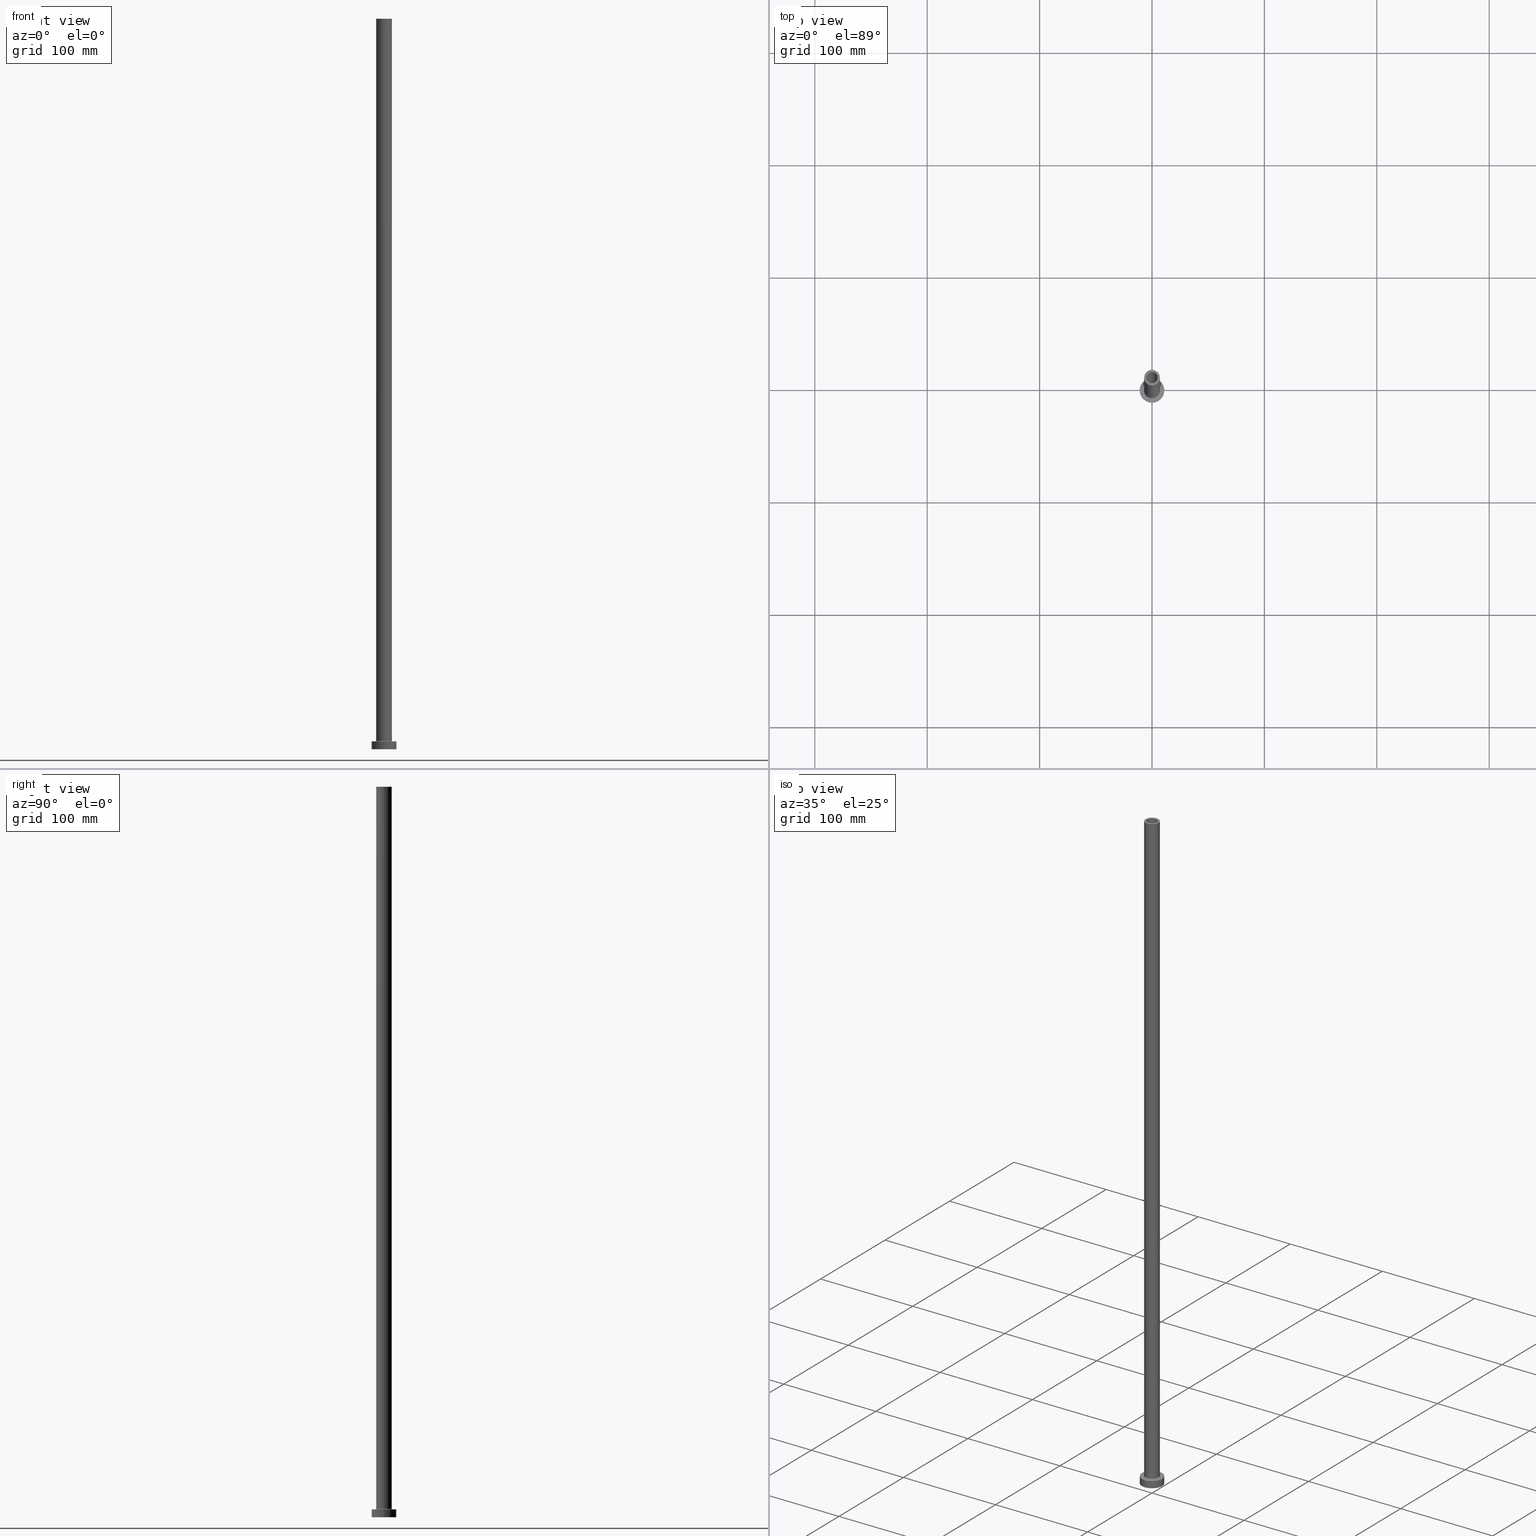
[diagram: canonical four-view strip — front | top / right | iso, engineering-drawing reading convention]
A machine part, canonical four-view strip (front | top / right | iso — engineering-drawing reading convention). The complete STEP part file that produces these views, byte-faithful:
ISO-10303-21;
HEADER;
FILE_DESCRIPTION (( 'STEP AP203' ),
    '1' );
FILE_NAME ('9826.STEP',
    '2023-02-13T10:05:26',
    ( '' ),
    ( '' ),
    'SwSTEP 2.0',
    'SolidWorks 2019',
    '' );
FILE_SCHEMA (( 'CONFIG_CONTROL_DESIGN' ));
ENDSEC;

DATA;
#1 = AXIS2_PLACEMENT_3D ( 'NONE', #113, #359, #367 ) ;
#2 = CARTESIAN_POINT ( 'NONE',  ( 5.150000000000001243, 6.306931015608869596E-16, 619.5663996924428147 ) ) ;
#3 = DIRECTION ( 'NONE',  ( 1.000000000000000000, 0.000000000000000000, 0.000000000000000000 ) ) ;
#4 = CARTESIAN_POINT ( 'NONE',  ( 7.000000000000000888, 8.572527594031474176E-16, 650.0000000000000000 ) ) ;
#5 = LINE ( 'NONE', #73, #55 ) ;
#6 = VERTEX_POINT ( 'NONE', #137 ) ;
#7 = LINE ( 'NONE', #75, #434 ) ;
#8 = AXIS2_PLACEMENT_3D ( 'NONE', #138, #218, #94 ) ;
#9 = ORIENTED_EDGE ( 'NONE', *, *, #151, .T. ) ;
#10 = FACE_OUTER_BOUND ( 'NONE', #398, .T. ) ;
#11 = ORIENTED_EDGE ( 'NONE', *, *, #411, .T. ) ;
#12 = ADVANCED_FACE ( 'NONE', ( #406 ), #286, .T. ) ;
#13 = ORIENTED_EDGE ( 'NONE', *, *, #208, .T. ) ;
#14 = VERTEX_POINT ( 'NONE', #98 ) ;
#15 = CARTESIAN_POINT ( 'NONE',  ( 0.000000000000000000, 0.000000000000000000, 0.000000000000000000 ) ) ;
#16 = EDGE_CURVE ( 'NONE', #204, #57, #182, .T. ) ;
#17 = DIRECTION ( 'NONE',  ( 0.000000000000000000, 0.000000000000000000, 1.000000000000000000 ) ) ;
#18 = ORIENTED_EDGE ( 'NONE', *, *, #29, .T. ) ;
#19 = CARTESIAN_POINT ( 'NONE',  ( 5.000000000000000000, 6.123233995736766282E-16, 650.0000000000000000 ) ) ;
#20 = DATE_AND_TIME ( #213, #196 ) ;
#21 = ORIENTED_EDGE ( 'NONE', *, *, #45, .T. ) ;
#22 = CIRCLE ( 'NONE', #143, 7.700000000000001066 ) ;
#23 = COORDINATED_UNIVERSAL_TIME_OFFSET ( 1, 0, .AHEAD. ) ;
#24 = ORIENTED_EDGE ( 'NONE', *, *, #396, .T. ) ;
#25 = DIRECTION ( 'NONE',  ( -1.000000000000000000, 0.000000000000000000, 0.000000000000000000 ) ) ;
#26 = DATE_AND_TIME ( #386, #251 ) ;
#27 = DIRECTION ( 'NONE',  ( -0.000000000000000000, -0.000000000000000000, -1.000000000000000000 ) ) ;
#28 = CARTESIAN_POINT ( 'NONE',  ( 0.000000000000000000, 0.000000000000000000, 7.000000000000000000 ) ) ;
#29 = EDGE_CURVE ( 'NONE', #85, #6, #100, .T. ) ;
#30 = FACE_OUTER_BOUND ( 'NONE', #114, .T. ) ;
#31 = DIRECTION ( 'NONE',  ( -0.000000000000000000, -0.000000000000000000, -1.000000000000000000 ) ) ;
#32 = CARTESIAN_POINT ( 'NONE',  ( -7.000000000000000888, 0.000000000000000000, 650.0000000000000000 ) ) ;
#33 = DIRECTION ( 'NONE',  ( 0.000000000000000000, 0.000000000000000000, 1.000000000000000000 ) ) ;
#34 = CIRCLE ( 'NONE', #205, 0.7000000000000000666 ) ;
#35 = CC_DESIGN_SECURITY_CLASSIFICATION ( #369, ( #44 ) ) ;
#36 = PRODUCT_DEFINITION ( 'NEZN�M�', '', #44, #364 ) ;
#37 = ORIENTED_EDGE ( 'NONE', *, *, #226, .F. ) ;
#38 = DIRECTION ( 'NONE',  ( 0.000000000000000000, 0.000000000000000000, 1.000000000000000000 ) ) ;
#39 = EDGE_CURVE ( 'NONE', #14, #302, #437, .T. ) ;
#40 = MANIFOLD_SOLID_BREP ( 'Odebrat vysunut�m4', #199 ) ;
#41 = EDGE_LOOP ( 'NONE', ( #420, #373, #438, #122 ) ) ;
#42 = PRODUCT ( '9826', '9826', '', ( #289 ) ) ;
#43 = DIRECTION ( 'NONE',  ( -1.000000000000000000, 0.000000000000000000, 0.000000000000000000 ) ) ;
#44 = PRODUCT_DEFINITION_FORMATION_WITH_SPECIFIED_SOURCE ( 'LIBOVOLN�', '', #42, .NOT_KNOWN. ) ;
#45 = EDGE_CURVE ( 'NONE', #269, #176, #316, .T. ) ;
#46 = ORIENTED_EDGE ( 'NONE', *, *, #235, .T. ) ;
#47 = DIRECTION ( 'NONE',  ( -1.000000000000000000, 0.000000000000000000, 0.000000000000000000 ) ) ;
#48 = CARTESIAN_POINT ( 'NONE',  ( 5.150000000000001243, 6.306931015608869596E-16, 605.0000000000000000 ) ) ;
#49 = VERTEX_POINT ( 'NONE', #380 ) ;
#50 = DIRECTION ( 'NONE',  ( -0.000000000000000000, -0.000000000000000000, -1.000000000000000000 ) ) ;
#51 = ORIENTED_EDGE ( 'NONE', *, *, #66, .F. ) ;
#52 = ADVANCED_FACE ( 'NONE', ( #451, #281 ), #93, .T. ) ;
#53 = CYLINDRICAL_SURFACE ( 'NONE', #356, 5.000000000000000000 ) ;
#54 = EDGE_CURVE ( 'NONE', #302, #14, #146, .T. ) ;
#55 = VECTOR ( 'NONE', #116, 1000.000000000000000 ) ;
#56 = CARTESIAN_POINT ( 'NONE',  ( 0.000000000000000000, 0.000000000000000000, 650.0000000000000000 ) ) ;
#57 = VERTEX_POINT ( 'NONE', #144 ) ;
#58 = PERSON_AND_ORGANIZATION ( #319, #132 ) ;
#59 = ORIENTED_EDGE ( 'NONE', *, *, #95, .T. ) ;
#60 = CARTESIAN_POINT ( 'NONE',  ( 7.700000000000001066, 0.000000000000000000, 7.000000000000020428 ) ) ;
#61 = CARTESIAN_POINT ( 'NONE',  ( 0.000000000000000000, 0.000000000000000000, 7.700000000000040146 ) ) ;
#62 = CC_DESIGN_APPROVAL ( #106, ( #36 ) ) ;
#63 = CALENDAR_DATE ( 2023, 13, 2 ) ;
#64 = EDGE_LOOP ( 'NONE', ( #214, #9, #387, #277 ) ) ;
#65 = PERSON_AND_ORGANIZATION_ROLE ( 'classification_officer' ) ;
#66 = EDGE_CURVE ( 'NONE', #269, #57, #67, .T. ) ;
#67 = LINE ( 'NONE', #427, #371 ) ;
#68 = VECTOR ( 'NONE', #365, 1000.000000000000000 ) ;
#69 = DIRECTION ( 'NONE',  ( -1.000000000000000000, 0.000000000000000000, 0.000000000000000000 ) ) ;
#70 = PLANE ( 'NONE',  #1 ) ;
#71 = CARTESIAN_POINT ( 'NONE',  ( 0.000000000000000000, 0.000000000000000000, 0.000000000000000000 ) ) ;
#72 = ADVANCED_BREP_SHAPE_REPRESENTATION ( '9826', ( #40, #124 ), #163 ) ;
#73 = CARTESIAN_POINT ( 'NONE',  ( 7.000000000000000888, 8.572527594031474176E-16, 650.0000000000000000 ) ) ;
#74 = VECTOR ( 'NONE', #276, 1000.000000000000000 ) ;
#75 = CARTESIAN_POINT ( 'NONE',  ( -5.000000000000000000, 0.000000000000000000, 650.0000000000000000 ) ) ;
#76 = EDGE_LOOP ( 'NONE', ( #402, #59 ) ) ;
#77 = CC_DESIGN_DATE_AND_TIME_ASSIGNMENT ( #26, #419, ( #369 ) ) ;
#78 = LINE ( 'NONE', #327, #68 ) ;
#79 = ORIENTED_EDGE ( 'NONE', *, *, #448, .F. ) ;
#80 = EDGE_CURVE ( 'NONE', #262, #174, #272, .T. ) ;
#81 = DIRECTION ( 'NONE',  ( 0.000000000000000000, -1.000000000000000000, 0.000000000000000000 ) ) ;
#82 = VERTEX_POINT ( 'NONE', #325 ) ;
#83 = CARTESIAN_POINT ( 'NONE',  ( 5.000000000000000000, 6.123233995736766282E-16, 650.0000000000000000 ) ) ;
#84 = PERSON_AND_ORGANIZATION_ROLE ( 'creator' ) ;
#85 = VERTEX_POINT ( 'NONE', #353 ) ;
#86 = CARTESIAN_POINT ( 'NONE',  ( -5.150000000000001243, 0.000000000000000000, 605.0000000000000000 ) ) ;
#87 = ORIENTED_EDGE ( 'NONE', *, *, #307, .T. ) ;
#88 = FACE_OUTER_BOUND ( 'NONE', #370, .T. ) ;
#89 = VECTOR ( 'NONE', #253, 1000.000000000000000 ) ;
#90 = EDGE_LOOP ( 'NONE', ( #436, #408, #13, #375 ) ) ;
#91 = APPLICATION_PROTOCOL_DEFINITION ( 'international standard', 'config_control_design', 1994, #355 ) ;
#92 = APPROVAL_DATE_TIME ( #20, #106 ) ;
#93 = PLANE ( 'NONE',  #240 ) ;
#94 = DIRECTION ( 'NONE',  ( 1.000000000000000000, 0.000000000000000000, 0.000000000000000000 ) ) ;
#95 = EDGE_CURVE ( 'NONE', #341, #366, #135, .T. ) ;
#96 = APPROVAL_STATUS ( 'not_yet_approved' ) ;
#97 = ORIENTED_EDGE ( 'NONE', *, *, #461, .F. ) ;
#98 = CARTESIAN_POINT ( 'NONE',  ( 11.00000000000000000, 1.347111479062088405E-15, 0.000000000000000000 ) ) ;
#99 = DIRECTION ( 'NONE',  ( -0.000000000000000000, -0.000000000000000000, -1.000000000000000000 ) ) ;
#100 = CIRCLE ( 'NONE', #165, 11.00000000000000000 ) ;
#101 = DATE_TIME_ROLE ( 'creation_date' ) ;
#102 = EDGE_CURVE ( 'NONE', #49, #164, #219, .T. ) ;
#103 = CARTESIAN_POINT ( 'NONE',  ( 0.000000000000000000, 0.000000000000000000, 650.0000000000000000 ) ) ;
#104 = CC_DESIGN_APPROVAL ( #275, ( #44 ) ) ;
#105 = AXIS2_PLACEMENT_3D ( 'NONE', #133, #17, #168 ) ;
#106 = APPROVAL ( #413, 'NEUR�EN�' ) ;
#107 = CARTESIAN_POINT ( 'NONE',  ( 5.150000000000001243, 6.306931015608869596E-16, 0.000000000000000000 ) ) ;
#108 = DIRECTION ( 'NONE',  ( 0.000000000000000000, 0.000000000000000000, -1.000000000000000000 ) ) ;
#109 = CYLINDRICAL_SURFACE ( 'NONE', #342, 5.150000000000001243 ) ;
#110 = CYLINDRICAL_SURFACE ( 'NONE', #421, 5.000000000000000000 ) ;
#111 = EDGE_LOOP ( 'NONE', ( #304, #306 ) ) ;
#112 = AXIS2_PLACEMENT_3D ( 'NONE', #188, #326, #3 ) ;
#113 = CARTESIAN_POINT ( 'NONE',  ( 0.000000000000000000, 0.000000000000000000, 605.0000000000000000 ) ) ;
#114 = EDGE_LOOP ( 'NONE', ( #405, #440, #252, #51 ) ) ;
#115 = ADVANCED_FACE ( 'NONE', ( #458 ), #183, .F. ) ;
#116 = DIRECTION ( 'NONE',  ( -0.000000000000000000, -0.000000000000000000, -1.000000000000000000 ) ) ;
#117 = CARTESIAN_POINT ( 'NONE',  ( 11.00000000000000000, 1.347111479062088405E-15, 7.000000000000000000 ) ) ;
#118 = ORIENTED_EDGE ( 'NONE', *, *, #141, .T. ) ;
#119 = CARTESIAN_POINT ( 'NONE',  ( 0.000000000000000000, 0.000000000000000000, 7.000000000000000000 ) ) ;
#120 = CARTESIAN_POINT ( 'NONE',  ( 7.700000000000001066, 0.000000000000000000, 7.700000000000040146 ) ) ;
#121 = APPROVAL_DATE_TIME ( #175, #275 ) ;
#122 = ORIENTED_EDGE ( 'NONE', *, *, #431, .F. ) ;
#123 = CARTESIAN_POINT ( 'NONE',  ( 0.000000000000000000, 0.000000000000000000, 0.000000000000000000 ) ) ;
#124 = AXIS2_PLACEMENT_3D ( 'NONE', #15, #166, #416 ) ;
#125 = CARTESIAN_POINT ( 'NONE',  ( 0.000000000000000000, 0.000000000000000000, 650.0000000000000000 ) ) ;
#126 = EDGE_LOOP ( 'NONE', ( #265, #297 ) ) ;
#127 = ORIENTED_EDGE ( 'NONE', *, *, #329, .T. ) ;
#128 = CARTESIAN_POINT ( 'NONE',  ( -11.00000000000000000, 0.000000000000000000, 7.000000000000000000 ) ) ;
#129 = ORIENTED_EDGE ( 'NONE', *, *, #208, .F. ) ;
#130 = DIRECTION ( 'NONE',  ( 1.000000000000000000, 0.000000000000000000, 0.000000000000000000 ) ) ;
#131 = CARTESIAN_POINT ( 'NONE',  ( 0.000000000000000000, 0.000000000000000000, 650.0000000000000000 ) ) ;
#132 = ORGANIZATION ( 'NEUR�EN�', 'NEUR�EN�', '' ) ;
#133 = CARTESIAN_POINT ( 'NONE',  ( 0.000000000000000000, 0.000000000000000000, 650.0000000000000000 ) ) ;
#134 = ADVANCED_FACE ( 'NONE', ( #30 ), #423, .T. ) ;
#135 = CIRCLE ( 'NONE', #403, 7.700000000000001066 ) ;
#136 = FACE_OUTER_BOUND ( 'NONE', #41, .T. ) ;
#137 = CARTESIAN_POINT ( 'NONE',  ( -11.00000000000000000, 0.000000000000000000, 7.000000000000000000 ) ) ;
#138 = CARTESIAN_POINT ( 'NONE',  ( 0.000000000000000000, 0.000000000000000000, 605.0000000000000000 ) ) ;
#139 = DIRECTION ( 'NONE',  ( 1.000000000000000000, 0.000000000000000000, 0.000000000000000000 ) ) ;
#140 = CARTESIAN_POINT ( 'NONE',  ( 0.000000000000000000, 0.000000000000000000, 7.000000000000000000 ) ) ;
#141 = EDGE_CURVE ( 'NONE', #174, #262, #442, .T. ) ;
#142 = AXIS2_PLACEMENT_3D ( 'NONE', #200, #271, #404 ) ;
#143 = AXIS2_PLACEMENT_3D ( 'NONE', #150, #363, #333 ) ;
#144 = CARTESIAN_POINT ( 'NONE',  ( -7.000000000000000888, 0.000000000000000000, 7.700000000000040146 ) ) ;
#145 = CARTESIAN_POINT ( 'NONE',  ( 0.000000000000000000, 0.000000000000000000, 605.0000000000000000 ) ) ;
#146 = CIRCLE ( 'NONE', #300, 11.00000000000000000 ) ;
#147 = DIRECTION ( 'NONE',  ( 1.000000000000000000, 0.000000000000000000, 0.000000000000000000 ) ) ;
#148 = CARTESIAN_POINT ( 'NONE',  ( 0.000000000000000000, 0.000000000000000000, 7.000000000000000000 ) ) ;
#149 = ORIENTED_EDGE ( 'NONE', *, *, #45, .F. ) ;
#150 = CARTESIAN_POINT ( 'NONE',  ( 0.000000000000000000, 0.000000000000000000, 7.000000000000000000 ) ) ;
#151 = EDGE_CURVE ( 'NONE', #174, #318, #422, .T. ) ;
#152 = AXIS2_PLACEMENT_3D ( 'NONE', #397, #160, #330 ) ;
#153 = CIRCLE ( 'NONE', #223, 5.000000000000000000 ) ;
#154 = DIRECTION ( 'NONE',  ( 1.224646799147353207E-16, 1.000000000000000000, -0.000000000000000000 ) ) ;
#155 = AXIS2_PLACEMENT_3D ( 'NONE', #239, #449, #139 ) ;
#156 = CARTESIAN_POINT ( 'NONE',  ( -7.700000000000001066, 9.429780353434621002E-16, 7.000000000000020428 ) ) ;
#157 = UNCERTAINTY_MEASURE_WITH_UNIT (LENGTH_MEASURE( 1.000000000000000082E-05 ), #215, 'distance_accuracy_value', 'NONE');
#158 = ORIENTED_EDGE ( 'NONE', *, *, #448, .T. ) ;
#159 = PLANE ( 'NONE',  #299 ) ;
#160 = DIRECTION ( 'NONE',  ( 0.000000000000000000, 0.000000000000000000, 1.000000000000000000 ) ) ;
#161 = ORIENTED_EDGE ( 'NONE', *, *, #431, .T. ) ;
#162 = AXIS2_PLACEMENT_3D ( 'NONE', #225, #256, #460 ) ;
#163 =( GEOMETRIC_REPRESENTATION_CONTEXT ( 3 ) GLOBAL_UNCERTAINTY_ASSIGNED_CONTEXT ( ( #157 ) ) GLOBAL_UNIT_ASSIGNED_CONTEXT ( ( #215, #385, #241 ) ) REPRESENTATION_CONTEXT ( 'NONE', 'WORKASPACE' ) );
#164 = VERTEX_POINT ( 'NONE', #83 ) ;
#165 = AXIS2_PLACEMENT_3D ( 'NONE', #207, #418, #284 ) ;
#166 = DIRECTION ( 'NONE',  ( 0.000000000000000000, 0.000000000000000000, 1.000000000000000000 ) ) ;
#167 = CARTESIAN_POINT ( 'NONE',  ( 0.000000000000000000, 0.000000000000000000, 650.0000000000000000 ) ) ;
#168 = DIRECTION ( 'NONE',  ( 1.000000000000000000, 0.000000000000000000, 0.000000000000000000 ) ) ;
#169 = CC_DESIGN_PERSON_AND_ORGANIZATION_ASSIGNMENT ( #58, #349, ( #44 ) ) ;
#170 = ADVANCED_FACE ( 'NONE', ( #10 ), #288, .F. ) ;
#171 = DIRECTION ( 'NONE',  ( -0.000000000000000000, -0.000000000000000000, -1.000000000000000000 ) ) ;
#172 = PERSON_AND_ORGANIZATION ( #319, #132 ) ;
#173 = LOCAL_TIME ( 11, 5, 26.00000000000000000, #352 ) ;
#174 = VERTEX_POINT ( 'NONE', #48 ) ;
#175 = DATE_AND_TIME ( #63, #400 ) ;
#176 = VERTEX_POINT ( 'NONE', #4 ) ;
#177 = CARTESIAN_POINT ( 'NONE',  ( 0.000000000000000000, 0.000000000000000000, 0.000000000000000000 ) ) ;
#178 = APPROVAL_STATUS ( 'not_yet_approved' ) ;
#179 = DIRECTION ( 'NONE',  ( 0.000000000000000000, 0.000000000000000000, 1.000000000000000000 ) ) ;
#180 = APPLICATION_PROTOCOL_DEFINITION ( 'international standard', 'config_control_design', 1994, #379 ) ;
#181 = CIRCLE ( 'NONE', #237, 5.000000000000000000 ) ;
#182 = CIRCLE ( 'NONE', #189, 7.000000000000000888 ) ;
#183 = CYLINDRICAL_SURFACE ( 'NONE', #162, 5.150000000000001243 ) ;
#184 = ADVANCED_FACE ( 'NONE', ( #368, #190 ), #337, .T. ) ;
#185 = DIRECTION ( 'NONE',  ( 0.000000000000000000, 0.000000000000000000, -1.000000000000000000 ) ) ;
#186 = DIRECTION ( 'NONE',  ( 1.000000000000000000, 0.000000000000000000, 0.000000000000000000 ) ) ;
#187 = CIRCLE ( 'NONE', #230, 5.150000000000001243 ) ;
#188 = CARTESIAN_POINT ( 'NONE',  ( 0.000000000000000000, 0.000000000000000000, 7.700000000000040146 ) ) ;
#189 = AXIS2_PLACEMENT_3D ( 'NONE', #61, #343, #217 ) ;
#190 = FACE_OUTER_BOUND ( 'NONE', #234, .T. ) ;
#191 = EDGE_CURVE ( 'NONE', #57, #341, #34, .T. ) ;
#192 = FACE_OUTER_BOUND ( 'NONE', #64, .T. ) ;
#193 = CARTESIAN_POINT ( 'NONE',  ( -5.000000000000000000, 0.000000000000000000, 605.0000000000000000 ) ) ;
#194 = PRODUCT_DEFINITION_SHAPE ( 'NONE', 'NONE',  #36 ) ;
#195 = EDGE_LOOP ( 'NONE', ( #298, #118, #361, #345 ) ) ;
#196 = LOCAL_TIME ( 11, 5, 26.00000000000000000, #401 ) ;
#197 = CARTESIAN_POINT ( 'NONE',  ( -5.150000000000001243, 0.000000000000000000, 0.000000000000000000 ) ) ;
#198 = DIRECTION ( 'NONE',  ( -1.000000000000000000, 1.224646799147351975E-16, 0.000000000000000000 ) ) ;
#199 = CLOSED_SHELL ( 'NONE', ( #424, #291, #170, #134, #382, #347, #184, #351, #12, #52, #322, #115, #266, #257 ) ) ;
#200 = CARTESIAN_POINT ( 'NONE',  ( 0.000000000000000000, 0.000000000000000000, 7.700000000000040146 ) ) ;
#201 = ORIENTED_EDGE ( 'NONE', *, *, #54, .F. ) ;
#202 = FACE_OUTER_BOUND ( 'NONE', #310, .T. ) ;
#203 = DIRECTION ( 'NONE',  ( 0.000000000000000000, 0.000000000000000000, -1.000000000000000000 ) ) ;
#204 = VERTEX_POINT ( 'NONE', #435 ) ;
#205 = AXIS2_PLACEMENT_3D ( 'NONE', #263, #154, #198 ) ;
#206 = VECTOR ( 'NONE', #334, 1000.000000000000000 ) ;
#207 = CARTESIAN_POINT ( 'NONE',  ( 0.000000000000000000, 0.000000000000000000, 7.000000000000000000 ) ) ;
#208 = EDGE_CURVE ( 'NONE', #204, #366, #354, .T. ) ;
#209 = APPROVAL_DATE_TIME ( #254, #393 ) ;
#210 = PRODUCT_RELATED_PRODUCT_CATEGORY ( 'detail', '', ( #42 ) ) ;
#211 = ORIENTED_EDGE ( 'NONE', *, *, #191, .T. ) ;
#212 = FACE_OUTER_BOUND ( 'NONE', #455, .T. ) ;
#213 = CALENDAR_DATE ( 2023, 13, 2 ) ;
#214 = ORIENTED_EDGE ( 'NONE', *, *, #80, .T. ) ;
#215 =( LENGTH_UNIT ( ) NAMED_UNIT ( * ) SI_UNIT ( .MILLI., .METRE. ) );
#216 = APPROVAL_PERSON_ORGANIZATION ( #238, #393, #378 ) ;
#217 = DIRECTION ( 'NONE',  ( 1.000000000000000000, 0.000000000000000000, 0.000000000000000000 ) ) ;
#218 = DIRECTION ( 'NONE',  ( 0.000000000000000000, 0.000000000000000000, 1.000000000000000000 ) ) ;
#219 = CIRCLE ( 'NONE', #425, 5.000000000000000000 ) ;
#220 = APPROVAL_ROLE ( '' ) ;
#221 = EDGE_LOOP ( 'NONE', ( #348, #388 ) ) ;
#222 = AXIS2_PLACEMENT_3D ( 'NONE', #119, #50, #47 ) ;
#223 = AXIS2_PLACEMENT_3D ( 'NONE', #346, #453, #130 ) ;
#224 = EDGE_CURVE ( 'NONE', #262, #335, #78, .T. ) ;
#225 = CARTESIAN_POINT ( 'NONE',  ( 0.000000000000000000, 0.000000000000000000, 619.5663996924428147 ) ) ;
#226 = EDGE_CURVE ( 'NONE', #6, #85, #331, .T. ) ;
#227 = DIRECTION ( 'NONE',  ( 0.000000000000000000, 0.000000000000000000, 1.000000000000000000 ) ) ;
#228 = ORIENTED_EDGE ( 'NONE', *, *, #329, .F. ) ;
#229 = DIRECTION ( 'NONE',  ( 0.000000000000000000, 0.000000000000000000, 1.000000000000000000 ) ) ;
#230 = AXIS2_PLACEMENT_3D ( 'NONE', #177, #381, #287 ) ;
#231 = ORIENTED_EDGE ( 'NONE', *, *, #66, .T. ) ;
#232 = DIRECTION ( 'NONE',  ( 0.000000000000000000, 0.000000000000000000, 1.000000000000000000 ) ) ;
#233 = FACE_BOUND ( 'NONE', #384, .T. ) ;
#234 = EDGE_LOOP ( 'NONE', ( #332, #18 ) ) ;
#235 = EDGE_CURVE ( 'NONE', #176, #269, #377, .T. ) ;
#236 = VECTOR ( 'NONE', #108, 1000.000000000000000 ) ;
#237 = AXIS2_PLACEMENT_3D ( 'NONE', #131, #280, #407 ) ;
#238 = PERSON_AND_ORGANIZATION ( #319, #132 ) ;
#239 = CARTESIAN_POINT ( 'NONE',  ( 0.000000000000000000, 0.000000000000000000, 0.000000000000000000 ) ) ;
#240 = AXIS2_PLACEMENT_3D ( 'NONE', #244, #179, #295 ) ;
#241 =( NAMED_UNIT ( * ) SI_UNIT ( $, .STERADIAN. ) SOLID_ANGLE_UNIT ( ) );
#242 = CYLINDRICAL_SURFACE ( 'NONE', #394, 11.00000000000000000 ) ;
#243 = APPROVAL_ROLE ( '' ) ;
#244 = CARTESIAN_POINT ( 'NONE',  ( 0.000000000000000000, 0.000000000000000000, 650.0000000000000000 ) ) ;
#245 = CARTESIAN_POINT ( 'NONE',  ( 0.000000000000000000, 0.000000000000000000, 0.000000000000000000 ) ) ;
#246 = PERSON_AND_ORGANIZATION ( #319, #132 ) ;
#247 = VERTEX_POINT ( 'NONE', #193 ) ;
#248 = CC_DESIGN_PERSON_AND_ORGANIZATION_ASSIGNMENT ( #250, #417, ( #36 ) ) ;
#249 = AXIS2_PLACEMENT_3D ( 'NONE', #103, #429, #69 ) ;
#250 = PERSON_AND_ORGANIZATION ( #319, #132 ) ;
#251 = LOCAL_TIME ( 11, 5, 26.00000000000000000, #268 ) ;
#252 = ORIENTED_EDGE ( 'NONE', *, *, #16, .T. ) ;
#253 = DIRECTION ( 'NONE',  ( 0.000000000000000000, 0.000000000000000000, -1.000000000000000000 ) ) ;
#254 = DATE_AND_TIME ( #320, #173 ) ;
#255 = EDGE_CURVE ( 'NONE', #85, #14, #301, .T. ) ;
#256 = DIRECTION ( 'NONE',  ( 0.000000000000000000, 0.000000000000000000, -1.000000000000000000 ) ) ;
#257 = ADVANCED_FACE ( 'NONE', ( #267 ), #110, .F. ) ;
#258 = AXIS2_PLACEMENT_3D ( 'NONE', #148, #229, #441 ) ;
#259 = DIRECTION ( 'NONE',  ( 0.000000000000000000, 0.000000000000000000, 1.000000000000000000 ) ) ;
#260 = FACE_OUTER_BOUND ( 'NONE', #90, .T. ) ;
#261 = FACE_OUTER_BOUND ( 'NONE', #126, .T. ) ;
#262 = VERTEX_POINT ( 'NONE', #86 ) ;
#263 = CARTESIAN_POINT ( 'NONE',  ( -7.700000000000001066, 9.429780353434621002E-16, 7.700000000000040146 ) ) ;
#264 = CC_DESIGN_DATE_AND_TIME_ASSIGNMENT ( #285, #101, ( #36 ) ) ;
#265 = ORIENTED_EDGE ( 'NONE', *, *, #80, .F. ) ;
#266 = ADVANCED_FACE ( 'NONE', ( #233, #261 ), #70, .F. ) ;
#267 = FACE_OUTER_BOUND ( 'NONE', #395, .T. ) ;
#268 = COORDINATED_UNIVERSAL_TIME_OFFSET ( 1, 0, .AHEAD. ) ;
#269 = VERTEX_POINT ( 'NONE', #32 ) ;
#270 = AXIS2_PLACEMENT_3D ( 'NONE', #430, #227, #360 ) ;
#271 = DIRECTION ( 'NONE',  ( 0.000000000000000000, 0.000000000000000000, 1.000000000000000000 ) ) ;
#272 = CIRCLE ( 'NONE', #414, 5.150000000000001243 ) ;
#273 = ORIENTED_EDGE ( 'NONE', *, *, #303, .F. ) ;
#274 = EDGE_CURVE ( 'NONE', #176, #204, #5, .T. ) ;
#275 = APPROVAL ( #96, 'NEUR�EN�' ) ;
#276 = DIRECTION ( 'NONE',  ( -0.000000000000000000, -0.000000000000000000, -1.000000000000000000 ) ) ;
#277 = ORIENTED_EDGE ( 'NONE', *, *, #224, .F. ) ;
#278 = AXIS2_PLACEMENT_3D ( 'NONE', #120, #81, #305 ) ;
#279 = CIRCLE ( 'NONE', #270, 7.000000000000000888 ) ;
#280 = DIRECTION ( 'NONE',  ( 0.000000000000000000, 0.000000000000000000, 1.000000000000000000 ) ) ;
#281 = FACE_OUTER_BOUND ( 'NONE', #338, .T. ) ;
#282 = PERSON_AND_ORGANIZATION ( #319, #132 ) ;
#283 = CC_DESIGN_PERSON_AND_ORGANIZATION_ASSIGNMENT ( #282, #450, ( #42 ) ) ;
#284 = DIRECTION ( 'NONE',  ( 1.000000000000000000, 0.000000000000000000, 0.000000000000000000 ) ) ;
#285 = DATE_AND_TIME ( #456, #443 ) ;
#286 = CYLINDRICAL_SURFACE ( 'NONE', #454, 7.000000000000000888 ) ;
#287 = DIRECTION ( 'NONE',  ( 1.000000000000000000, 0.000000000000000000, 0.000000000000000000 ) ) ;
#288 = TOROIDAL_SURFACE ( 'NONE', #142, 7.700000000000001066, 0.6999999999999999556 ) ;
#289 = MECHANICAL_CONTEXT ( 'NONE', #355, 'mechanical' ) ;
#290 = CC_DESIGN_PERSON_AND_ORGANIZATION_ASSIGNMENT ( #246, #65, ( #369 ) ) ;
#291 = ADVANCED_FACE ( 'NONE', ( #192 ), #109, .F. ) ;
#292 = DIRECTION ( 'NONE',  ( 0.000000000000000000, 0.000000000000000000, 1.000000000000000000 ) ) ;
#293 = AXIS2_PLACEMENT_3D ( 'NONE', #245, #99, #317 ) ;
#294 = DIRECTION ( 'NONE',  ( 0.000000000000000000, 0.000000000000000000, 1.000000000000000000 ) ) ;
#295 = DIRECTION ( 'NONE',  ( 1.000000000000000000, 0.000000000000000000, -0.000000000000000000 ) ) ;
#296 = DIRECTION ( 'NONE',  ( 1.000000000000000000, 0.000000000000000000, 0.000000000000000000 ) ) ;
#297 = ORIENTED_EDGE ( 'NONE', *, *, #141, .F. ) ;
#298 = ORIENTED_EDGE ( 'NONE', *, *, #151, .F. ) ;
#299 = AXIS2_PLACEMENT_3D ( 'NONE', #123, #232, #339 ) ;
#300 = AXIS2_PLACEMENT_3D ( 'NONE', #71, #294, #350 ) ;
#301 = LINE ( 'NONE', #117, #206 ) ;
#302 = VERTEX_POINT ( 'NONE', #324 ) ;
#303 = EDGE_CURVE ( 'NONE', #366, #341, #22, .T. ) ;
#304 = ORIENTED_EDGE ( 'NONE', *, *, #102, .F. ) ;
#305 = DIRECTION ( 'NONE',  ( 0.000000000000000000, 0.000000000000000000, -1.000000000000000000 ) ) ;
#306 = ORIENTED_EDGE ( 'NONE', *, *, #411, .F. ) ;
#307 = EDGE_CURVE ( 'NONE', #49, #247, #7, .T. ) ;
#308 = DIRECTION ( 'NONE',  ( -1.000000000000000000, 0.000000000000000000, 0.000000000000000000 ) ) ;
#309 = DIRECTION ( 'NONE',  ( -1.000000000000000000, 0.000000000000000000, 0.000000000000000000 ) ) ;
#310 = EDGE_LOOP ( 'NONE', ( #444, #37, #161, #457 ) ) ;
#311 = LINE ( 'NONE', #19, #89 ) ;
#312 = ORIENTED_EDGE ( 'NONE', *, *, #274, .F. ) ;
#313 = APPROVAL_PERSON_ORGANIZATION ( #172, #275, #243 ) ;
#314 = DIRECTION ( 'NONE',  ( -0.000000000000000000, -0.000000000000000000, -1.000000000000000000 ) ) ;
#315 = SECURITY_CLASSIFICATION_LEVEL ( 'unclassified' ) ;
#316 = CIRCLE ( 'NONE', #105, 7.000000000000000888 ) ;
#317 = DIRECTION ( 'NONE',  ( 1.000000000000000000, 0.000000000000000000, 0.000000000000000000 ) ) ;
#318 = VERTEX_POINT ( 'NONE', #107 ) ;
#319 = PERSON ( 'NEUR�EN�', 'NEUR�EN�', 'NEUR�EN�', ('NEUR�EN�'), ('NEUR�EN�'), ('NEUR�EN�') ) ;
#320 = CALENDAR_DATE ( 2023, 13, 2 ) ;
#321 = AXIS2_PLACEMENT_3D ( 'NONE', #358, #33, #147 ) ;
#322 = ADVANCED_FACE ( 'NONE', ( #260 ), #459, .F. ) ;
#323 = CARTESIAN_POINT ( 'NONE',  ( 0.000000000000000000, 0.000000000000000000, 650.0000000000000000 ) ) ;
#324 = CARTESIAN_POINT ( 'NONE',  ( -11.00000000000000000, 0.000000000000000000, 0.000000000000000000 ) ) ;
#325 = CARTESIAN_POINT ( 'NONE',  ( 5.000000000000000000, 6.123233995736766282E-16, 605.0000000000000000 ) ) ;
#326 = DIRECTION ( 'NONE',  ( 0.000000000000000000, 0.000000000000000000, 1.000000000000000000 ) ) ;
#327 = CARTESIAN_POINT ( 'NONE',  ( -5.150000000000001243, 0.000000000000000000, 619.5663996924428147 ) ) ;
#328 = ORIENTED_EDGE ( 'NONE', *, *, #39, .F. ) ;
#329 = EDGE_CURVE ( 'NONE', #57, #204, #279, .T. ) ;
#330 = DIRECTION ( 'NONE',  ( 1.000000000000000000, 0.000000000000000000, -0.000000000000000000 ) ) ;
#331 = CIRCLE ( 'NONE', #258, 11.00000000000000000 ) ;
#332 = ORIENTED_EDGE ( 'NONE', *, *, #226, .T. ) ;
#333 = DIRECTION ( 'NONE',  ( 1.000000000000000000, 0.000000000000000000, 0.000000000000000000 ) ) ;
#334 = DIRECTION ( 'NONE',  ( -0.000000000000000000, -0.000000000000000000, -1.000000000000000000 ) ) ;
#335 = VERTEX_POINT ( 'NONE', #197 ) ;
#336 = FACE_BOUND ( 'NONE', #221, .T. ) ;
#337 = PLANE ( 'NONE',  #152 ) ;
#338 = EDGE_LOOP ( 'NONE', ( #21, #46 ) ) ;
#339 = DIRECTION ( 'NONE',  ( 1.000000000000000000, 0.000000000000000000, -0.000000000000000000 ) ) ;
#340 = CARTESIAN_POINT ( 'NONE',  ( 0.000000000000000000, 0.000000000000000000, 650.0000000000000000 ) ) ;
#341 = VERTEX_POINT ( 'NONE', #156 ) ;
#342 = AXIS2_PLACEMENT_3D ( 'NONE', #433, #185, #43 ) ;
#343 = DIRECTION ( 'NONE',  ( 0.000000000000000000, 0.000000000000000000, 1.000000000000000000 ) ) ;
#344 = SHAPE_DEFINITION_REPRESENTATION ( #194, #72 ) ;
#345 = ORIENTED_EDGE ( 'NONE', *, *, #389, .T. ) ;
#346 = CARTESIAN_POINT ( 'NONE',  ( 0.000000000000000000, 0.000000000000000000, 605.0000000000000000 ) ) ;
#347 = ADVANCED_FACE ( 'NONE', ( #202 ), #372, .T. ) ;
#348 = ORIENTED_EDGE ( 'NONE', *, *, #389, .F. ) ;
#349 = PERSON_AND_ORGANIZATION_ROLE ( 'design_supplier' ) ;
#350 = DIRECTION ( 'NONE',  ( 1.000000000000000000, 0.000000000000000000, 0.000000000000000000 ) ) ;
#351 = ADVANCED_FACE ( 'NONE', ( #336, #88 ), #159, .F. ) ;
#352 = COORDINATED_UNIVERSAL_TIME_OFFSET ( 1, 0, .AHEAD. ) ;
#353 = CARTESIAN_POINT ( 'NONE',  ( 11.00000000000000000, 1.347111479062088405E-15, 7.000000000000000000 ) ) ;
#354 = CIRCLE ( 'NONE', #278, 0.7000000000000000666 ) ;
#355 = APPLICATION_CONTEXT ( 'configuration controlled 3d designs of mechanical parts and assemblies' ) ;
#356 = AXIS2_PLACEMENT_3D ( 'NONE', #167, #412, #309 ) ;
#357 = DIRECTION ( 'NONE',  ( 1.000000000000000000, 0.000000000000000000, 0.000000000000000000 ) ) ;
#358 = CARTESIAN_POINT ( 'NONE',  ( 0.000000000000000000, 0.000000000000000000, 605.0000000000000000 ) ) ;
#359 = DIRECTION ( 'NONE',  ( 0.000000000000000000, 0.000000000000000000, 1.000000000000000000 ) ) ;
#360 = DIRECTION ( 'NONE',  ( 1.000000000000000000, 0.000000000000000000, 0.000000000000000000 ) ) ;
#361 = ORIENTED_EDGE ( 'NONE', *, *, #224, .T. ) ;
#362 = EDGE_CURVE ( 'NONE', #318, #335, #452, .T. ) ;
#363 = DIRECTION ( 'NONE',  ( -0.000000000000000000, -0.000000000000000000, -1.000000000000000000 ) ) ;
#364 = DESIGN_CONTEXT ( 'detailed design', #379, 'design' ) ;
#365 = DIRECTION ( 'NONE',  ( 0.000000000000000000, 0.000000000000000000, -1.000000000000000000 ) ) ;
#366 = VERTEX_POINT ( 'NONE', #60 ) ;
#367 = DIRECTION ( 'NONE',  ( 1.000000000000000000, 0.000000000000000000, -0.000000000000000000 ) ) ;
#368 = FACE_BOUND ( 'NONE', #76, .T. ) ;
#369 = SECURITY_CLASSIFICATION ( '', '', #315 ) ;
#370 = EDGE_LOOP ( 'NONE', ( #201, #328 ) ) ;
#371 = VECTOR ( 'NONE', #27, 1000.000000000000000 ) ;
#372 = CYLINDRICAL_SURFACE ( 'NONE', #222, 11.00000000000000000 ) ;
#373 = ORIENTED_EDGE ( 'NONE', *, *, #255, .T. ) ;
#374 = DIRECTION ( 'NONE',  ( -1.000000000000000000, 0.000000000000000000, 0.000000000000000000 ) ) ;
#375 = ORIENTED_EDGE ( 'NONE', *, *, #95, .F. ) ;
#376 = ORIENTED_EDGE ( 'NONE', *, *, #396, .F. ) ;
#377 = CIRCLE ( 'NONE', #410, 7.000000000000000888 ) ;
#378 = APPROVAL_ROLE ( '' ) ;
#379 = APPLICATION_CONTEXT ( 'configuration controlled 3d designs of mechanical parts and assemblies' ) ;
#380 = CARTESIAN_POINT ( 'NONE',  ( -5.000000000000000000, 0.000000000000000000, 650.0000000000000000 ) ) ;
#381 = DIRECTION ( 'NONE',  ( -0.000000000000000000, -0.000000000000000000, -1.000000000000000000 ) ) ;
#382 = ADVANCED_FACE ( 'NONE', ( #136 ), #242, .T. ) ;
#383 = PERSON_AND_ORGANIZATION ( #319, #132 ) ;
#384 = EDGE_LOOP ( 'NONE', ( #445, #158 ) ) ;
#385 =( NAMED_UNIT ( * ) PLANE_ANGLE_UNIT ( ) SI_UNIT ( $, .RADIAN. ) );
#386 = CALENDAR_DATE ( 2023, 13, 2 ) ;
#387 = ORIENTED_EDGE ( 'NONE', *, *, #362, .T. ) ;
#388 = ORIENTED_EDGE ( 'NONE', *, *, #362, .F. ) ;
#389 = EDGE_CURVE ( 'NONE', #335, #318, #187, .T. ) ;
#390 = PERSON_AND_ORGANIZATION ( #319, #132 ) ;
#391 = APPROVAL_PERSON_ORGANIZATION ( #390, #106, #220 ) ;
#392 = DIRECTION ( 'NONE',  ( 1.000000000000000000, 0.000000000000000000, 0.000000000000000000 ) ) ;
#393 = APPROVAL ( #178, 'NEUR�EN�' ) ;
#394 = AXIS2_PLACEMENT_3D ( 'NONE', #140, #314, #25 ) ;
#395 = EDGE_LOOP ( 'NONE', ( #376, #11, #87, #79 ) ) ;
#396 = EDGE_CURVE ( 'NONE', #164, #82, #311, .T. ) ;
#397 = CARTESIAN_POINT ( 'NONE',  ( 0.000000000000000000, 0.000000000000000000, 7.000000000000000000 ) ) ;
#398 = EDGE_LOOP ( 'NONE', ( #228, #211, #273, #129 ) ) ;
#399 = EDGE_LOOP ( 'NONE', ( #312, #149, #231, #127 ) ) ;
#400 = LOCAL_TIME ( 11, 5, 26.00000000000000000, #23 ) ;
#401 = COORDINATED_UNIVERSAL_TIME_OFFSET ( 1, 0, .AHEAD. ) ;
#402 = ORIENTED_EDGE ( 'NONE', *, *, #303, .T. ) ;
#403 = AXIS2_PLACEMENT_3D ( 'NONE', #28, #31, #357 ) ;
#404 = DIRECTION ( 'NONE',  ( 1.000000000000000000, 0.000000000000000000, 0.000000000000000000 ) ) ;
#405 = ORIENTED_EDGE ( 'NONE', *, *, #235, .F. ) ;
#406 = FACE_OUTER_BOUND ( 'NONE', #399, .T. ) ;
#407 = DIRECTION ( 'NONE',  ( 1.000000000000000000, 0.000000000000000000, 0.000000000000000000 ) ) ;
#408 = ORIENTED_EDGE ( 'NONE', *, *, #16, .F. ) ;
#409 = CIRCLE ( 'NONE', #8, 5.000000000000000000 ) ;
#410 = AXIS2_PLACEMENT_3D ( 'NONE', #125, #38, #296 ) ;
#411 = EDGE_CURVE ( 'NONE', #164, #49, #181, .T. ) ;
#412 = DIRECTION ( 'NONE',  ( 0.000000000000000000, 0.000000000000000000, -1.000000000000000000 ) ) ;
#413 = APPROVAL_STATUS ( 'not_yet_approved' ) ;
#414 = AXIS2_PLACEMENT_3D ( 'NONE', #145, #292, #186 ) ;
#415 = ORIENTED_EDGE ( 'NONE', *, *, #102, .T. ) ;
#416 = DIRECTION ( 'NONE',  ( 1.000000000000000000, 0.000000000000000000, 0.000000000000000000 ) ) ;
#417 = PERSON_AND_ORGANIZATION_ROLE ( 'creator' ) ;
#418 = DIRECTION ( 'NONE',  ( 0.000000000000000000, 0.000000000000000000, 1.000000000000000000 ) ) ;
#419 = DATE_TIME_ROLE ( 'classification_date' ) ;
#420 = ORIENTED_EDGE ( 'NONE', *, *, #29, .F. ) ;
#421 = AXIS2_PLACEMENT_3D ( 'NONE', #340, #203, #374 ) ;
#422 = LINE ( 'NONE', #2, #236 ) ;
#423 = CYLINDRICAL_SURFACE ( 'NONE', #249, 7.000000000000000888 ) ;
#424 = ADVANCED_FACE ( 'NONE', ( #212 ), #53, .F. ) ;
#425 = AXIS2_PLACEMENT_3D ( 'NONE', #323, #259, #392 ) ;
#426 = CC_DESIGN_APPROVAL ( #393, ( #369 ) ) ;
#427 = CARTESIAN_POINT ( 'NONE',  ( -7.000000000000000888, 0.000000000000000000, 650.0000000000000000 ) ) ;
#428 = DIRECTION ( 'NONE',  ( 0.000000000000000000, 0.000000000000000000, -1.000000000000000000 ) ) ;
#429 = DIRECTION ( 'NONE',  ( -0.000000000000000000, -0.000000000000000000, -1.000000000000000000 ) ) ;
#430 = CARTESIAN_POINT ( 'NONE',  ( 0.000000000000000000, 0.000000000000000000, 7.700000000000040146 ) ) ;
#431 = EDGE_CURVE ( 'NONE', #6, #302, #447, .T. ) ;
#432 = ORIENTED_EDGE ( 'NONE', *, *, #307, .F. ) ;
#433 = CARTESIAN_POINT ( 'NONE',  ( 0.000000000000000000, 0.000000000000000000, 619.5663996924428147 ) ) ;
#434 = VECTOR ( 'NONE', #428, 1000.000000000000000 ) ;
#435 = CARTESIAN_POINT ( 'NONE',  ( 7.000000000000000888, 8.572527594031474176E-16, 7.700000000000040146 ) ) ;
#436 = ORIENTED_EDGE ( 'NONE', *, *, #191, .F. ) ;
#437 = CIRCLE ( 'NONE', #155, 11.00000000000000000 ) ;
#438 = ORIENTED_EDGE ( 'NONE', *, *, #39, .T. ) ;
#439 = COORDINATED_UNIVERSAL_TIME_OFFSET ( 1, 0, .AHEAD. ) ;
#440 = ORIENTED_EDGE ( 'NONE', *, *, #274, .T. ) ;
#441 = DIRECTION ( 'NONE',  ( 1.000000000000000000, 0.000000000000000000, 0.000000000000000000 ) ) ;
#442 = CIRCLE ( 'NONE', #321, 5.150000000000001243 ) ;
#443 = LOCAL_TIME ( 11, 5, 26.00000000000000000, #439 ) ;
#444 = ORIENTED_EDGE ( 'NONE', *, *, #255, .F. ) ;
#445 = ORIENTED_EDGE ( 'NONE', *, *, #461, .T. ) ;
#446 = CC_DESIGN_PERSON_AND_ORGANIZATION_ASSIGNMENT ( #383, #84, ( #44 ) ) ;
#447 = LINE ( 'NONE', #128, #74 ) ;
#448 = EDGE_CURVE ( 'NONE', #82, #247, #153, .T. ) ;
#449 = DIRECTION ( 'NONE',  ( 0.000000000000000000, 0.000000000000000000, 1.000000000000000000 ) ) ;
#450 = PERSON_AND_ORGANIZATION_ROLE ( 'design_owner' ) ;
#451 = FACE_BOUND ( 'NONE', #111, .T. ) ;
#452 = CIRCLE ( 'NONE', #293, 5.150000000000001243 ) ;
#453 = DIRECTION ( 'NONE',  ( 0.000000000000000000, 0.000000000000000000, 1.000000000000000000 ) ) ;
#454 = AXIS2_PLACEMENT_3D ( 'NONE', #56, #171, #308 ) ;
#455 = EDGE_LOOP ( 'NONE', ( #415, #24, #97, #432 ) ) ;
#456 = CALENDAR_DATE ( 2023, 13, 2 ) ;
#457 = ORIENTED_EDGE ( 'NONE', *, *, #54, .T. ) ;
#458 = FACE_OUTER_BOUND ( 'NONE', #195, .T. ) ;
#459 = TOROIDAL_SURFACE ( 'NONE', #112, 7.700000000000001066, 0.6999999999999999556 ) ;
#460 = DIRECTION ( 'NONE',  ( -1.000000000000000000, 0.000000000000000000, 0.000000000000000000 ) ) ;
#461 = EDGE_CURVE ( 'NONE', #247, #82, #409, .T. ) ;
ENDSEC;
END-ISO-10303-21;
